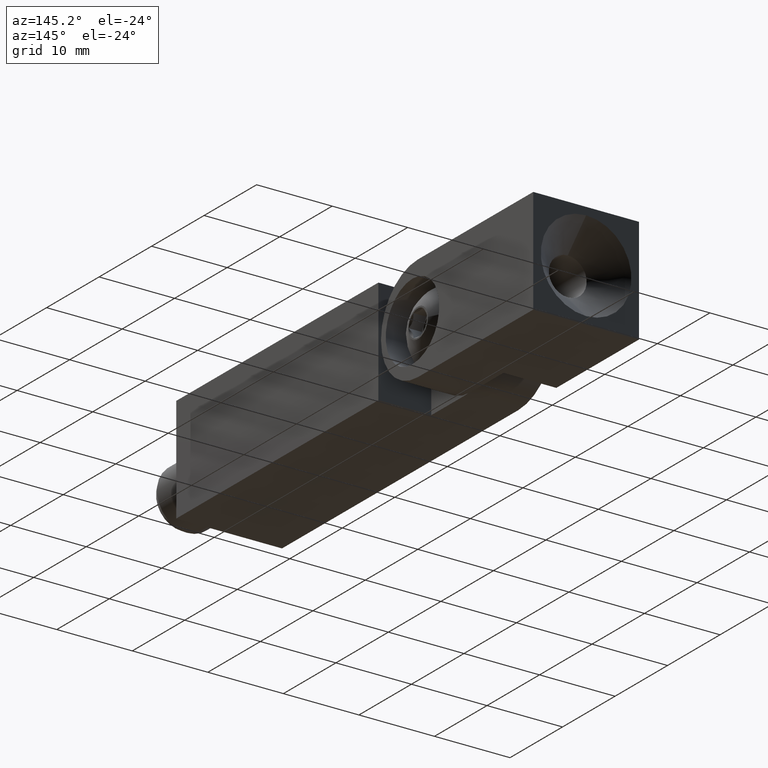
[diagram: clean part render]
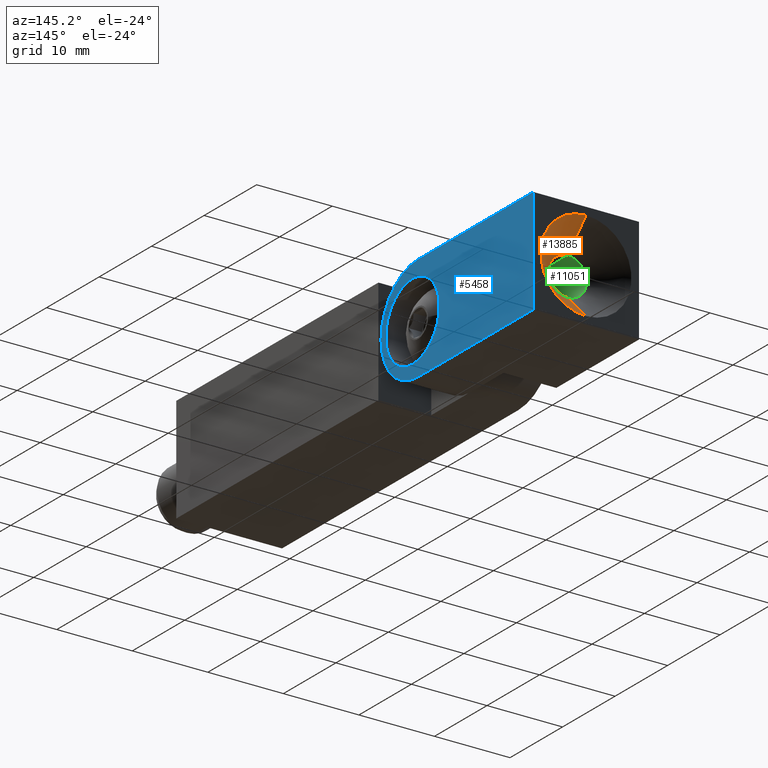
[diagram: same view with three faces highlighted in distinct colors, each labeled with its STEP entity id]
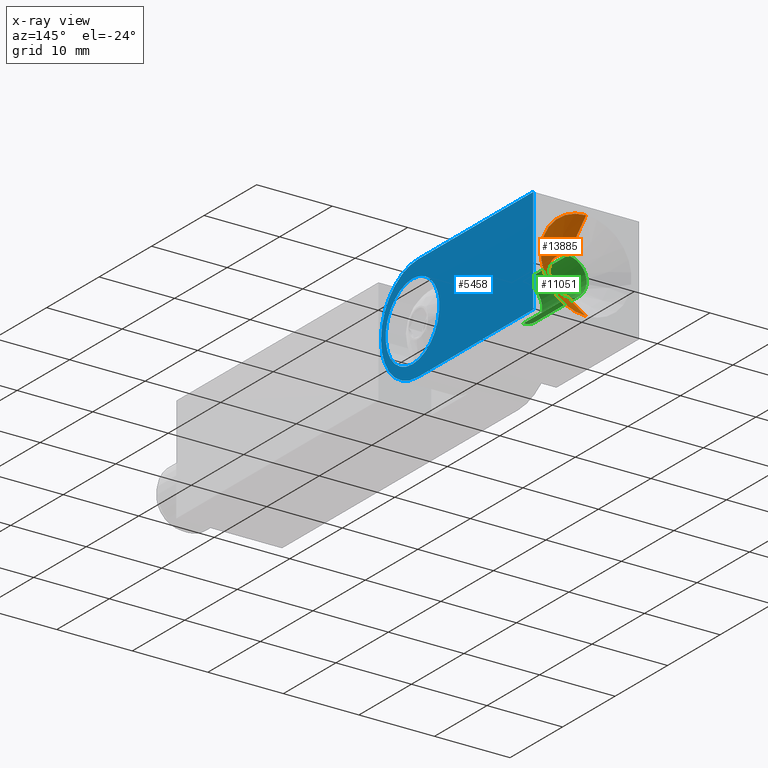
[diagram: x-ray of the same camera — body ghosted, the three highlighted faces saturated]
A machine part, auxiliary view with three faces highlighted in distinct colors.
The next image is the same camera in x-ray (body ghosted, the three faces saturated) — at least one of them is partly hidden behind the body in this view.
Their STEP definitions:

[orange] entity #13885 — the highlighted conical surface has half-angle 45 deg.
#766 = ORIENTED_EDGE ( 'NONE', *, *, #12759, .T. ) ;
#826 = VERTEX_POINT ( 'NONE', #2936 ) ;
#891 = CARTESIAN_POINT ( 'NONE',  ( -6.938893903907227600E-015, 29.00000000000016300, 6.000000000000000000 ) ) ;
#972 = AXIS2_PLACEMENT_3D ( 'NONE', #8117, #12722, #7016 ) ;
#1429 = VECTOR ( 'NONE', #7417, 1000.000000000000100 ) ;
#1607 = CIRCLE ( 'NONE', #8498, 2.499999999999997800 ) ;
#1954 = LINE ( 'NONE', #891, #14594 ) ;
#2267 = DIRECTION ( 'NONE',  ( 1.283953296258157200E-031, 1.156482317317871300E-015, 1.000000000000000000 ) ) ;
#2342 = LINE ( 'NONE', #10798, #1429 ) ;
#2539 = CARTESIAN_POINT ( 'NONE',  ( -6.418419014269601600E-015, 25.50000000000008900, -2.499999999999997800 ) ) ;
#2936 = CARTESIAN_POINT ( 'NONE',  ( -6.938893903907227600E-015, 29.00000000000014900, 5.999999999999986700 ) ) ;
#4112 = ORIENTED_EDGE ( 'NONE', *, *, #10249, .T. ) ;
#5491 = DIRECTION ( 'NONE',  ( 0.0000000000000000000, 1.387778780781446900E-015, 1.000000000000000000 ) ) ;
#5730 = VERTEX_POINT ( 'NONE', #13402 ) ;
#6647 = CARTESIAN_POINT ( 'NONE',  ( -6.938893903907228400E-015, 29.00000000000015600, 0.0000000000000000000 ) ) ;
#6880 = VERTEX_POINT ( 'NONE', #7786 ) ;
#7016 = DIRECTION ( 'NONE',  ( 1.283953296258157200E-031, 1.156482317317871300E-015, 1.000000000000000000 ) ) ;
#7417 = DIRECTION ( 'NONE',  ( 8.659560562354966100E-017, 0.7071067811865491300, -0.7071067811865459100 ) ) ;
#7786 = CARTESIAN_POINT ( 'NONE',  ( -6.204105824418812000E-015, 29.00000000000016300, -6.000000000000014200 ) ) ;
#8117 = CARTESIAN_POINT ( 'NONE',  ( -6.938893903907228400E-015, 29.00000000000015600, 0.0000000000000000000 ) ) ;
#8498 = AXIS2_PLACEMENT_3D ( 'NONE', #14597, #14546, #5491 ) ;
#8772 = CIRCLE ( 'NONE', #9172, 6.000000000000000000 ) ;
#9101 = DIRECTION ( 'NONE',  ( 1.654988313805936700E-031, 1.000000000000000000, 1.221245327087669000E-015 ) ) ;
#9172 = AXIS2_PLACEMENT_3D ( 'NONE', #6647, #9101, #2267 ) ;
#10249 = EDGE_CURVE ( 'NONE', #6880, #826, #8772, .T. ) ;
#10545 = ORIENTED_EDGE ( 'NONE', *, *, #13420, .F. ) ;
#10798 = CARTESIAN_POINT ( 'NONE',  ( -6.204105824418813500E-015, 29.00000000000014900, -6.000000000000000000 ) ) ;
#11209 = VERTEX_POINT ( 'NONE', #2539 ) ;
#11233 = CONICAL_SURFACE ( 'NONE', #972, 6.000000000000000000, 0.7853981633974483900 ) ;
#11732 = EDGE_LOOP ( 'NONE', ( #10545, #766, #4112, #14680 ) ) ;
#12722 = DIRECTION ( 'NONE',  ( 1.654988313805936700E-031, 1.000000000000000000, 1.221245327087669000E-015 ) ) ;
#12759 = EDGE_CURVE ( 'NONE', #11209, #6880, #2342, .T. ) ;
#13402 = CARTESIAN_POINT ( 'NONE',  ( -6.938893903907228400E-015, 25.50000000000008900, 2.499999999999997800 ) ) ;
#13420 = EDGE_CURVE ( 'NONE', #11209, #5730, #1607, .T. ) ;
#13628 = EDGE_CURVE ( 'NONE', #5730, #826, #1954, .T. ) ;
#13885 = ADVANCED_FACE ( 'NONE', ( #14236 ), #11233, .F. ) ;
#14236 = FACE_OUTER_BOUND ( 'NONE', #11732, .T. ) ;
#14546 = DIRECTION ( 'NONE',  ( 1.654988313805936700E-031, 1.000000000000000000, 1.221245327087669000E-015 ) ) ;
#14594 = VECTOR ( 'NONE', #14627, 1000.000000000000100 ) ;
#14597 = CARTESIAN_POINT ( 'NONE',  ( -6.938893903907228400E-015, 25.50000000000008500, 0.0000000000000000000 ) ) ;
#14627 = DIRECTION ( 'NONE',  ( 2.128987498608242800E-031, 0.7071067811865491300, 0.7071067811865459100 ) ) ;
#14680 = ORIENTED_EDGE ( 'NONE', *, *, #13628, .F. ) ;

[blue] entity #5458 — the highlighted planar face has unit normal (-1, -0, 0).
#39 = EDGE_CURVE ( 'NONE', #14273, #9695, #6316, .T. ) ;
#755 = LINE ( 'NONE', #10142, #4658 ) ;
#818 = ORIENTED_EDGE ( 'NONE', *, *, #3483, .F. ) ;
#894 = VERTEX_POINT ( 'NONE', #13273 ) ;
#1116 = AXIS2_PLACEMENT_3D ( 'NONE', #12601, #10190, #3507 ) ;
#1132 = CARTESIAN_POINT ( 'NONE',  ( -7.000000000000006200, 29.00000000000014200, -6.999999999999999100 ) ) ;
#2061 = EDGE_LOOP ( 'NONE', ( #3948, #2325, #4371, #11403, #6357 ) ) ;
#2226 = EDGE_CURVE ( 'NONE', #12047, #7109, #6289, .T. ) ;
#2325 = ORIENTED_EDGE ( 'NONE', *, *, #11843, .T. ) ;
#2813 = DIRECTION ( 'NONE',  ( -1.000000000000000000, -3.529787964523075600E-033, 1.239088197126291100E-016 ) ) ;
#3093 = CARTESIAN_POINT ( 'NONE',  ( -7.000000000000006200, 29.00000000000014200, -6.999999999999999100 ) ) ;
#3289 = DIRECTION ( 'NONE',  ( 1.000000000000000000, 3.529787964522890800E-033, -1.239088197126292500E-016 ) ) ;
#3483 = EDGE_CURVE ( 'NONE', #7109, #12047, #12869, .T. ) ;
#3507 = DIRECTION ( 'NONE',  ( 1.700709290173342400E-016, 1.190496503121339700E-015, 1.000000000000000000 ) ) ;
#3721 = CARTESIAN_POINT ( 'NONE',  ( -6.999999999999999100, 7.000000000000075500, 6.999999999999999100 ) ) ;
#3948 = ORIENTED_EDGE ( 'NONE', *, *, #10232, .T. ) ;
#3999 = CARTESIAN_POINT ( 'NONE',  ( -6.999999999999999100, 7.000000000000068400, 0.0000000000000000000 ) ) ;
#4185 = AXIS2_PLACEMENT_3D ( 'NONE', #3999, #12021, #8685 ) ;
#4371 = ORIENTED_EDGE ( 'NONE', *, *, #5563, .T. ) ;
#4628 = CARTESIAN_POINT ( 'NONE',  ( -7.000000000000000000, 6.000000000000069300, -5.099999999999993400 ) ) ;
#4658 = VECTOR ( 'NONE', #11386, 1000.000000000000000 ) ;
#5425 = DIRECTION ( 'NONE',  ( -1.000000000000000000, 1.300472103211916500E-031, 2.168404344971009100E-016 ) ) ;
#5458 = ADVANCED_FACE ( 'NONE', ( #14628, #11261 ), #8968, .F. ) ;
#5563 = EDGE_CURVE ( 'NONE', #894, #9695, #13183, .T. ) ;
#5903 = LINE ( 'NONE', #1132, #7713 ) ;
#6192 = VERTEX_POINT ( 'NONE', #6616 ) ;
#6289 = CIRCLE ( 'NONE', #9320, 5.099999999999993400 ) ;
#6316 = LINE ( 'NONE', #12510, #10448 ) ;
#6357 = ORIENTED_EDGE ( 'NONE', *, *, #10248, .F. ) ;
#6616 = CARTESIAN_POINT ( 'NONE',  ( -6.999999999999999100, 7.000000000000075500, -6.999999999999999100 ) ) ;
#6634 = CARTESIAN_POINT ( 'NONE',  ( -6.999999999999999100, 6.000000000000074600, 0.0000000000000000000 ) ) ;
#6852 = DIRECTION ( 'NONE',  ( -1.654988313805936700E-031, -1.000000000000000000, -1.221245327087668800E-015 ) ) ;
#6891 = DIRECTION ( 'NONE',  ( -1.654988313805936700E-031, -1.000000000000000000, -1.221245327087668800E-015 ) ) ;
#7109 = VERTEX_POINT ( 'NONE', #4628 ) ;
#7713 = VECTOR ( 'NONE', #6852, 1000.000000000000000 ) ;
#7762 = CARTESIAN_POINT ( 'NONE',  ( -6.999999999999998200, 6.000000000000080800, 5.099999999999993400 ) ) ;
#8109 = VERTEX_POINT ( 'NONE', #12392 ) ;
#8287 = DIRECTION ( 'NONE',  ( -1.239088197126290800E-016, -1.239088197126290900E-015, -1.000000000000000000 ) ) ;
#8685 = DIRECTION ( 'NONE',  ( -1.239088197126290800E-016, -1.239088197126290900E-015, -1.000000000000000000 ) ) ;
#8968 = PLANE ( 'NONE',  #13415 ) ;
#9320 = AXIS2_PLACEMENT_3D ( 'NONE', #6634, #5425, #12112 ) ;
#9695 = VERTEX_POINT ( 'NONE', #3721 ) ;
#10142 = CARTESIAN_POINT ( 'NONE',  ( -7.000000000000006200, 29.00000000000014200, -6.999999999999999100 ) ) ;
#10190 = DIRECTION ( 'NONE',  ( -1.000000000000000000, 1.300472103211916500E-031, 2.168404344971009100E-016 ) ) ;
#10232 = EDGE_CURVE ( 'NONE', #8109, #6192, #5903, .T. ) ;
#10248 = EDGE_CURVE ( 'NONE', #8109, #14273, #755, .T. ) ;
#10448 = VECTOR ( 'NONE', #6891, 1000.000000000000000 ) ;
#11144 = AXIS2_PLACEMENT_3D ( 'NONE', #14047, #2813, #8287 ) ;
#11261 = FACE_OUTER_BOUND ( 'NONE', #2061, .T. ) ;
#11386 = DIRECTION ( 'NONE',  ( 1.239088197126291800E-016, 1.221245327087675000E-015, 1.000000000000000000 ) ) ;
#11392 = CARTESIAN_POINT ( 'NONE',  ( -7.000000000000006200, 29.00000000000015600, 7.000000000000006200 ) ) ;
#11403 = ORIENTED_EDGE ( 'NONE', *, *, #39, .F. ) ;
#11843 = EDGE_CURVE ( 'NONE', #6192, #894, #14089, .T. ) ;
#12021 = DIRECTION ( 'NONE',  ( -1.000000000000000000, -3.529787964523075600E-033, 1.239088197126291100E-016 ) ) ;
#12047 = VERTEX_POINT ( 'NONE', #7762 ) ;
#12112 = DIRECTION ( 'NONE',  ( 1.700709290173342400E-016, 1.190496503121339700E-015, 1.000000000000000000 ) ) ;
#12392 = CARTESIAN_POINT ( 'NONE',  ( -7.000000000000006200, 29.00000000000014200, -6.999999999999999100 ) ) ;
#12510 = CARTESIAN_POINT ( 'NONE',  ( -7.000000000000006200, 29.00000000000015600, 7.000000000000006200 ) ) ;
#12601 = CARTESIAN_POINT ( 'NONE',  ( -6.999999999999999100, 6.000000000000074600, 0.0000000000000000000 ) ) ;
#12869 = CIRCLE ( 'NONE', #1116, 5.099999999999993400 ) ;
#13183 = CIRCLE ( 'NONE', #11144, 7.000000000000000000 ) ;
#13273 = CARTESIAN_POINT ( 'NONE',  ( -6.999999999999999100, 0.0000000000000000000, 0.0000000000000000000 ) ) ;
#13284 = EDGE_LOOP ( 'NONE', ( #13986, #818 ) ) ;
#13388 = DIRECTION ( 'NONE',  ( -1.239088197126292500E-016, -1.221245327087675000E-015, -1.000000000000000000 ) ) ;
#13415 = AXIS2_PLACEMENT_3D ( 'NONE', #3093, #3289, #13388 ) ;
#13986 = ORIENTED_EDGE ( 'NONE', *, *, #2226, .F. ) ;
#14047 = CARTESIAN_POINT ( 'NONE',  ( -6.999999999999999100, 7.000000000000068400, 0.0000000000000000000 ) ) ;
#14089 = CIRCLE ( 'NONE', #4185, 7.000000000000000000 ) ;
#14273 = VERTEX_POINT ( 'NONE', #11392 ) ;
#14628 = FACE_BOUND ( 'NONE', #13284, .T. ) ;

[green] entity #11051 — the highlighted cylindrical surface (edge-blend (fillet) strip) has radius 2.5 mm, axis along (-0, 1, -0).
#1129 = CARTESIAN_POINT ( 'NONE',  ( -6.632732204120387400E-015, 17.00000000000001800, -2.500000000000007500 ) ) ;
#1439 = FACE_OUTER_BOUND ( 'NONE', #11524, .T. ) ;
#2539 = CARTESIAN_POINT ( 'NONE',  ( -6.418419014269601600E-015, 25.50000000000008900, -2.499999999999997800 ) ) ;
#2578 = AXIS2_PLACEMENT_3D ( 'NONE', #2894, #9677, #14227 ) ;
#2894 = CARTESIAN_POINT ( 'NONE',  ( -6.938893903907228400E-015, 17.00000000000001400, 0.0000000000000000000 ) ) ;
#3373 = DIRECTION ( 'NONE',  ( 1.654988313805936700E-031, 1.000000000000000000, 1.221245327087669000E-015 ) ) ;
#3411 = LINE ( 'NONE', #6264, #8741 ) ;
#4444 = CARTESIAN_POINT ( 'NONE',  ( -6.938893903907228400E-015, 29.00000000000016000, 2.499999999999997800 ) ) ;
#4664 = DIRECTION ( 'NONE',  ( 1.654988313805936700E-031, 1.000000000000000000, 1.221245327087669000E-015 ) ) ;
#4838 = EDGE_CURVE ( 'NONE', #5730, #11209, #8956, .T. ) ;
#5144 = ORIENTED_EDGE ( 'NONE', *, *, #5997, .F. ) ;
#5376 = VECTOR ( 'NONE', #3373, 1000.000000000000000 ) ;
#5730 = VERTEX_POINT ( 'NONE', #13402 ) ;
#5830 = DIRECTION ( 'NONE',  ( 1.654988313805936700E-031, 1.000000000000000000, 1.221245327087669000E-015 ) ) ;
#5997 = EDGE_CURVE ( 'NONE', #9221, #11209, #3411, .T. ) ;
#6250 = CYLINDRICAL_SURFACE ( 'NONE', #6778, 2.499999999999997800 ) ;
#6264 = CARTESIAN_POINT ( 'NONE',  ( -6.632732204120388900E-015, 29.00000000000015300, -2.499999999999997800 ) ) ;
#6778 = AXIS2_PLACEMENT_3D ( 'NONE', #7939, #4664, #7985 ) ;
#7736 = ORIENTED_EDGE ( 'NONE', *, *, #10219, .T. ) ;
#7939 = CARTESIAN_POINT ( 'NONE',  ( -6.938893903907228400E-015, 29.00000000000015600, 0.0000000000000000000 ) ) ;
#7985 = DIRECTION ( 'NONE',  ( 0.0000000000000000000, 1.387778780781446900E-015, 1.000000000000000000 ) ) ;
#8137 = ORIENTED_EDGE ( 'NONE', *, *, #13094, .F. ) ;
#8567 = DIRECTION ( 'NONE',  ( 1.654988313805936700E-031, 1.000000000000000000, 1.221245327087669000E-015 ) ) ;
#8741 = VECTOR ( 'NONE', #8567, 1000.000000000000000 ) ;
#8956 = CIRCLE ( 'NONE', #9612, 2.499999999999997800 ) ;
#8963 = VERTEX_POINT ( 'NONE', #13710 ) ;
#9154 = LINE ( 'NONE', #4444, #5376 ) ;
#9221 = VERTEX_POINT ( 'NONE', #1129 ) ;
#9612 = AXIS2_PLACEMENT_3D ( 'NONE', #11518, #5830, #11567 ) ;
#9677 = DIRECTION ( 'NONE',  ( 1.654988313805936700E-031, 1.000000000000000000, 1.221245327087669000E-015 ) ) ;
#9946 = ORIENTED_EDGE ( 'NONE', *, *, #4838, .T. ) ;
#10219 = EDGE_CURVE ( 'NONE', #8963, #5730, #9154, .T. ) ;
#11051 = ADVANCED_FACE ( 'NONE', ( #1439 ), #6250, .F. ) ;
#11209 = VERTEX_POINT ( 'NONE', #2539 ) ;
#11518 = CARTESIAN_POINT ( 'NONE',  ( -6.938893903907228400E-015, 25.50000000000008500, 0.0000000000000000000 ) ) ;
#11524 = EDGE_LOOP ( 'NONE', ( #5144, #8137, #7736, #9946 ) ) ;
#11567 = DIRECTION ( 'NONE',  ( 0.0000000000000000000, 1.387778780781446900E-015, 1.000000000000000000 ) ) ;
#13094 = EDGE_CURVE ( 'NONE', #8963, #9221, #14252, .T. ) ;
#13402 = CARTESIAN_POINT ( 'NONE',  ( -6.938893903907228400E-015, 25.50000000000008900, 2.499999999999997800 ) ) ;
#13710 = CARTESIAN_POINT ( 'NONE',  ( -6.938893903907228400E-015, 17.00000000000001100, 2.499999999999985800 ) ) ;
#14227 = DIRECTION ( 'NONE',  ( 0.0000000000000000000, 1.387778780781447600E-015, 1.000000000000000000 ) ) ;
#14252 = CIRCLE ( 'NONE', #2578, 2.499999999999996400 ) ;